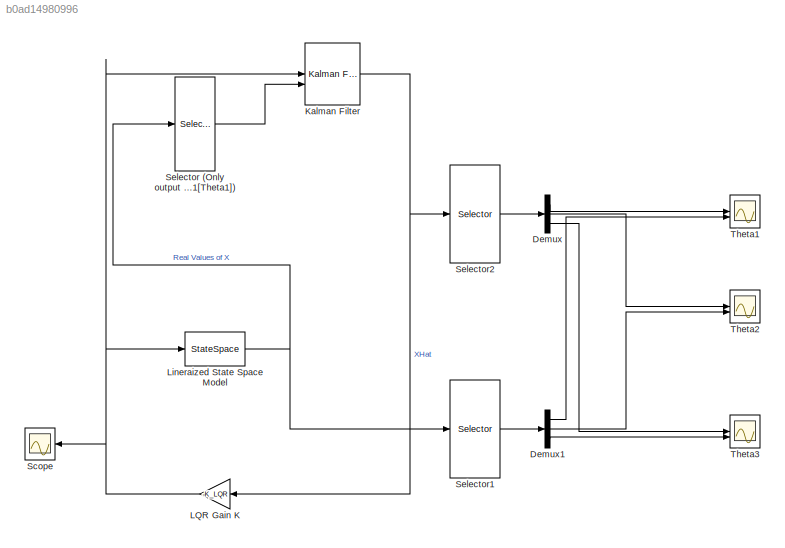
MODEL slx_b0ad14980996
KIND model
CONFIG AbsTol = auto
CONFIG EnableMultiTasking = off
CONFIG FixedStep = auto
CONFIG MaxStep = auto
CONFIG MinStep = auto
CONFIG RelTol = 1e-3
CONFIG SampleTimeConstraint = Unconstrained
CONFIG SolverName = VariableStepAuto
CONFIG StartTime = 0.0
CONFIG StopTime = 20
BLOCK [Demux] Demux
  Outputs = 3
BLOCK [Demux] Demux1
  Outputs = 3
BLOCK [Reference] Kalman Filter  REF=ctrlSharedLib/Kalman Filter
  LibrarySourceBlock = cstblocks/State Estimation/Kalman Filter
  SourceBlock = ctrlSharedLib/Kalman Filter
  SourceType = ctrlKalmanFilter
BLOCK [Gain] LQR Gain K
  Gain = -K_LQR
  Multiplication = Matrix(K*u)
  NameLocation = top
BLOCK [StateSpace] Lineraized State Space Model
  A = A
  B = B
  C = eye(6)
  D = zeros(6,1)
  InitialCondition = [0,0.1,0,0,0,0]
  ParameterTunability = Optimized
BLOCK [Scope] Scope
  Floating = off
  NameLocation = top
  NumInputPorts = 1
  ScopeSpecificationString = Simulink.scopes.TimeScopeBlockCfg('CurrentConfiguration', extmgr.ConfigurationSet(extmgr.Configuration('Core','General UI',true),extmgr.Configuration('Core','Source UI',true),extmgr.Configuration('Sources','WiredSimulink',true,'DataLoggingVariableName','ScopeData1'),extmgr.Configuration('Visuals','Time Domain',true,'SerializedDisplays',{struct('MinYLimReal','-4.50028','MaxYLimReal','0.51351','YLab...<+1772ch>
BLOCK [Selector] Selector (Only output state 1[Theta1])
  IndexOptions = Index vector (dialog)
  Indices = [1]
  InputPortWidth = 6
  OutputSizes = 1
BLOCK [Selector] Selector1
  IndexOptions = Index vector (dialog)
  Indices = [1:3]
  InputPortWidth = 6
  OutputSizes = 1
BLOCK [Selector] Selector2
  IndexOptions = Index vector (dialog)
  Indices = [1:3]
  InputPortWidth = 6
  OutputSizes = 1
BLOCK [Scope] Theta1
  Floating = off
  NumInputPorts = 2
  ScopeSpecificationString = Simulink.scopes.TimeScopeBlockCfg('CurrentConfiguration', extmgr.ConfigurationSet(extmgr.Configuration('Core','General UI',true),extmgr.Configuration('Core','Source UI',true),extmgr.Configuration('Sources','WiredSimulink',true,'DataLoggingVariableName','ScopeData1'),extmgr.Configuration('Visuals','Time Domain',true,'SerializedDisplays',{struct('MinYLimReal','-2.03901','MaxYLimReal','5.98968','YLab...<+1407ch>
BLOCK [Scope] Theta2
  Floating = off
  NumInputPorts = 2
  ScopeSpecificationString = Simulink.scopes.TimeScopeBlockCfg('CurrentConfiguration', extmgr.ConfigurationSet(extmgr.Configuration('Core','General UI',true),extmgr.Configuration('Core','Source UI',true),extmgr.Configuration('Sources','WiredSimulink',true),extmgr.Configuration('Visuals','Time Domain',true,'SerializedDisplays',{struct('MinYLimReal','-0.28172','MaxYLimReal','0.388','YLabelReal','','MinYLimMag','0.00000','MaxYLi...<+1358ch>
BLOCK [Scope] Theta3
  Floating = off
  NumInputPorts = 2
  ScopeSpecificationString = Simulink.scopes.TimeScopeBlockCfg('CurrentConfiguration', extmgr.ConfigurationSet(extmgr.Configuration('Core','General UI',true),extmgr.Configuration('Core','Source UI',true),extmgr.Configuration('Sources','WiredSimulink',true,'DataLoggingVariableName','ScopeData2'),extmgr.Configuration('Visuals','Time Domain',true,'SerializedDisplays',{struct('MinYLimReal','-0.35416','MaxYLimReal','0.57091','YLab...<+1406ch>
LINE Demux1:1 -> Theta1:2
LINE Demux1:2 -> Theta2:2
LINE Demux1:3 -> Theta3:2
LINE Demux:1 -> Theta1:1
LINE Demux:2 -> Theta2:1
LINE Demux:3 -> Theta3:1
NET Kalman Filter:1 -> LQR Gain K:1, Selector2:1
NET LQR Gain K:1 -> Kalman Filter:1, Lineraized State Space Model:1, Scope:1
NET Lineraized State Space Model:1 -> Selector (Only output state 1[Theta1]):1, Selector1:1
LINE Selector (Only output state 1[Theta1]):1 -> Kalman Filter:2
LINE Selector1:1 -> Demux1:1
LINE Selector2:1 -> Demux:1
note: NET lines group one-source signal fan-out (src -> all destinations, sorted); 1:1 wires keep LINE
